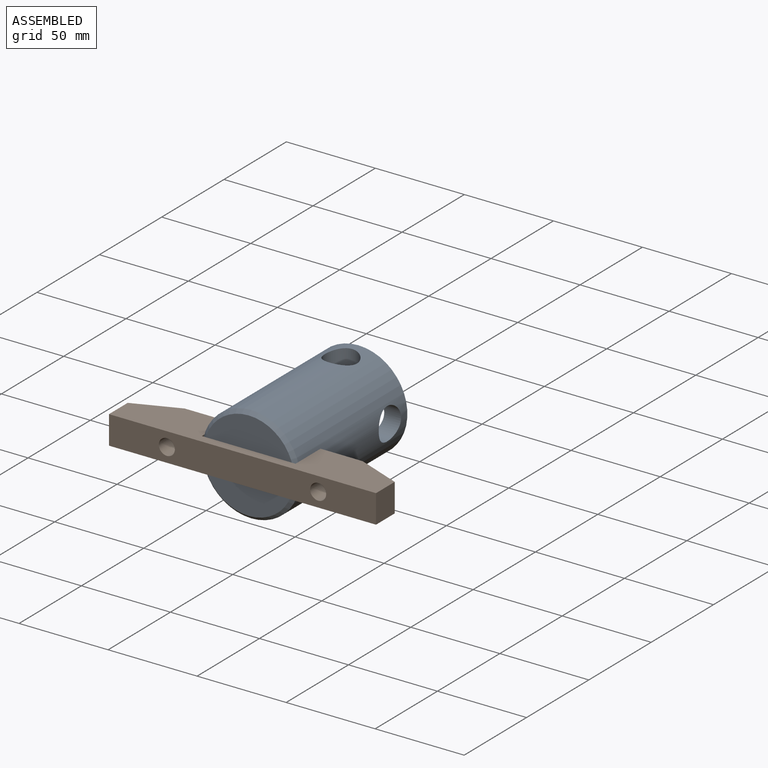
[diagram: assembled view]
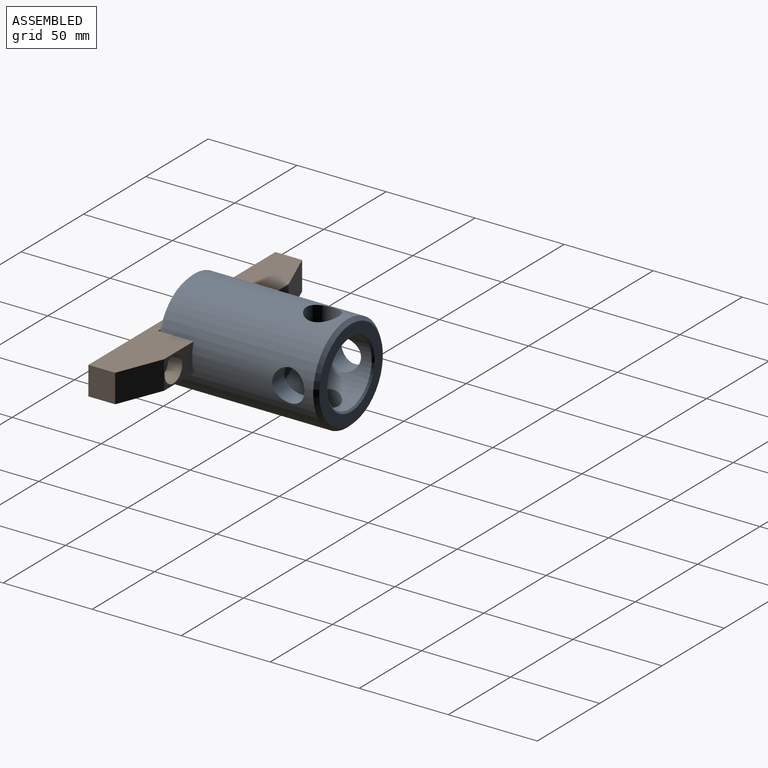
[diagram: assembled view, second angle]
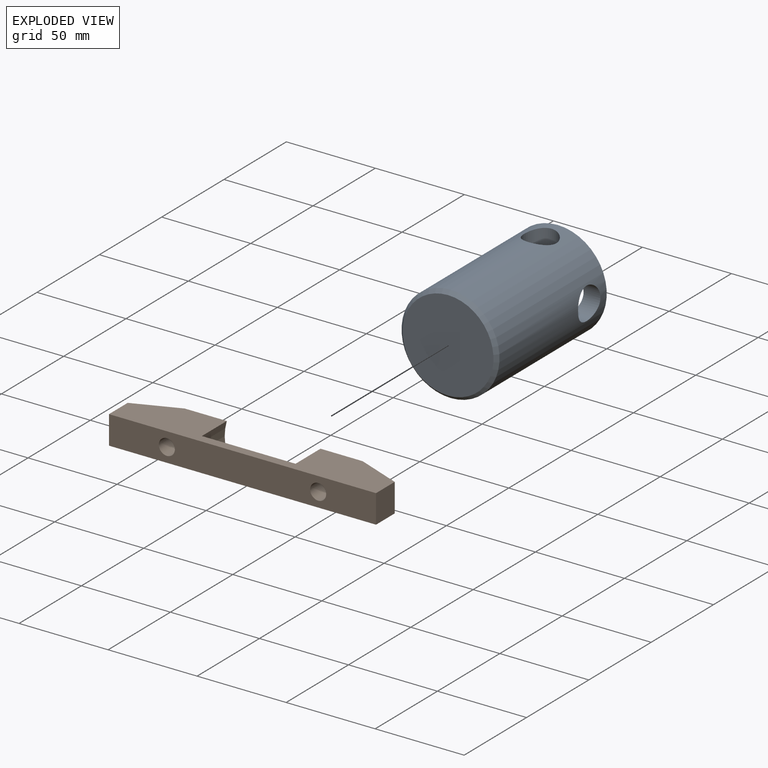
[diagram: exploded view]
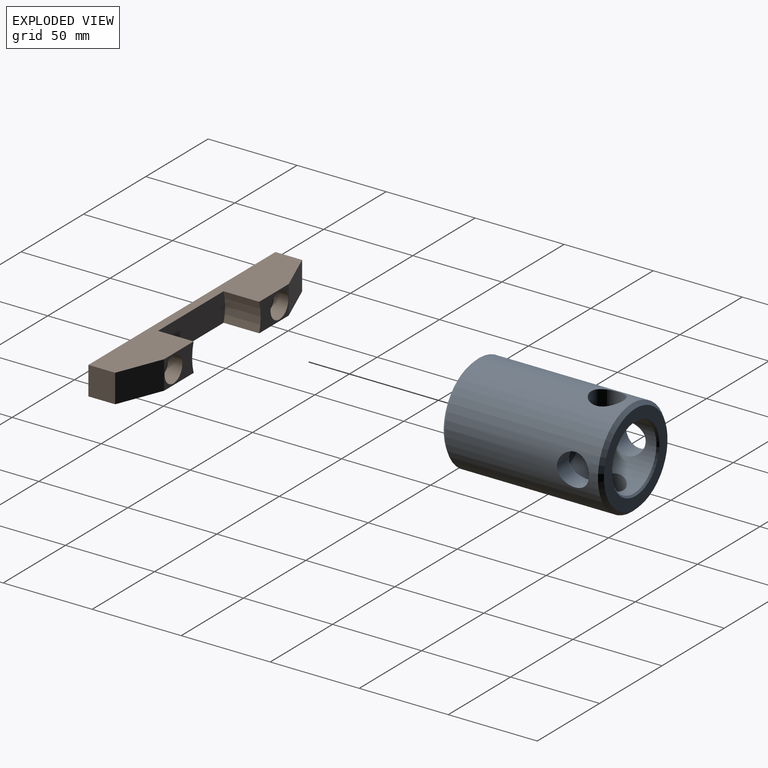
[diagram: exploded view, second angle]
ASSEMBLY  parts=2 mates=2
PART A: 12 faces, bbox 55x90x55 mm
  f0: cylinder r=9mm len=18mm, axis (0,0,-1), area 561.6mm2, adj f3,f4
  f1: cylinder r=9mm len=18mm, axis (-1,0,0), area 561.6mm2, adj f3,f4
  f2: cylinder r=9mm len=18mm, axis (0,0,1), area 561.6mm2, adj f3,f4
  f3: cylinder r=27.5mm len=86mm, axis (0,-1,0), area 13830.7mm2, adj f0,f1,f2,f8,f9,f10
  f4: cylinder r=18mm len=41mm, axis (0,1,0), area 3586.5mm2, adj f0,f1,f2,f7,f8,f11
  f5: plane 51x51mm, normal (0,1,0), area 908.7mm2, adj f10,f11
  f6: plane 51x51mm, normal (0,-1,0), area 2042.8mm2, adj f9
  f7: cone r=0mm half-angle=59deg, axis (0,1,0), area 1187.5mm2, adj f4
  f8: cylinder r=9mm len=18mm, axis (1,0,0), area 561.6mm2, adj f3,f4
  f9: cone r=25.5mm half-angle=45deg, axis (0,1,0), area 470.9mm2, adj f3,f6
  f10: cone r=27.5mm half-angle=45deg, axis (0,-1,0), area 470.9mm2, adj f3,f5
  f11: cone r=18mm half-angle=45deg, axis (0,1,0), area 164.4mm2, adj f4,f5
PART B: 18 faces, bbox 150x25x16 mm
  f0: cylinder r=4.5mm len=17mm, axis (0,1,0), area 480.7mm2, adj f1,f5
  f1: plane 14.25x14.25mm, normal (0,1,0), area 95.9mm2, adj f0,f2
  f2: cylinder r=7.12mm len=14.25mm, axis (0,1,0), area 358.1mm2, adj f1,f3
  f3: plane 23.69x16mm, normal (0,1,0), area 206.8mm2, adj f2,f4,f9,f11,f12
  f4: plane 150x25mm, normal (0,0,1), area 2447.6mm2, adj f3,f5,f6,f7,f8,f9,f10,f12
  f5: plane 150x16mm, normal (0,-1,0), area 2272.8mm2, adj f0,f4,f6,f10,f11,f15
  f6: plane 16x15mm, normal (1,0,0), area 240mm2, adj f4,f5,f7,f11
  f7: plane 25x16mm, normal (0.37,0.93,0), area 430.8mm2, adj f4,f6,f8,f11
  f8: plane 23.69x16mm, normal (0,1,0), area 206.8mm2, adj f4,f7,f11,f13,f17
  f9: plane 25x16mm, normal (-0.37,0.93,0), area 430.8mm2, adj f3,f4,f10,f11
  f10: plane 16x15mm, normal (-1,0,0), area 240mm2, adj f4,f5,f9,f11
  f11: plane 150x25mm, normal (0,0,-1), area 2447.6mm2, adj f3,f5,f6,f7,f8,f9,f10,f12
  f12: cylinder r=27.5mm len=20mm, axis (0,1,0), area 324.7mm2, adj f3,f4,f11,f14
  f13: cylinder r=27.5mm len=20mm, axis (0,1,0), area 324.7mm2, adj f4,f8,f11,f14
  f14: plane 55x16mm, normal (0,1,0), area 867.4mm2, adj f4,f11,f12,f13
  f15: cylinder r=4.5mm len=17mm, axis (0,1,0), area 480.7mm2, adj f5,f16
  f16: plane 14.25x14.25mm, normal (0,1,0), area 95.9mm2, adj f15,f17
  f17: cylinder r=7.12mm len=14.25mm, axis (0,1,0), area 358.1mm2, adj f8,f16
PLACE A t=(-24.69,43.09,37.94)mm
PLACE B t=(-24.69,-6.91,37.94)mm
MATE cylindrical A.f3 <-> B.f12  axis (0,-1,0) through (-24.69,43.09,37.94)mm
MATE planar A.f3 <-> B.f12  axis (0,-1,0) through (-24.69,-1.91,37.94)mm
